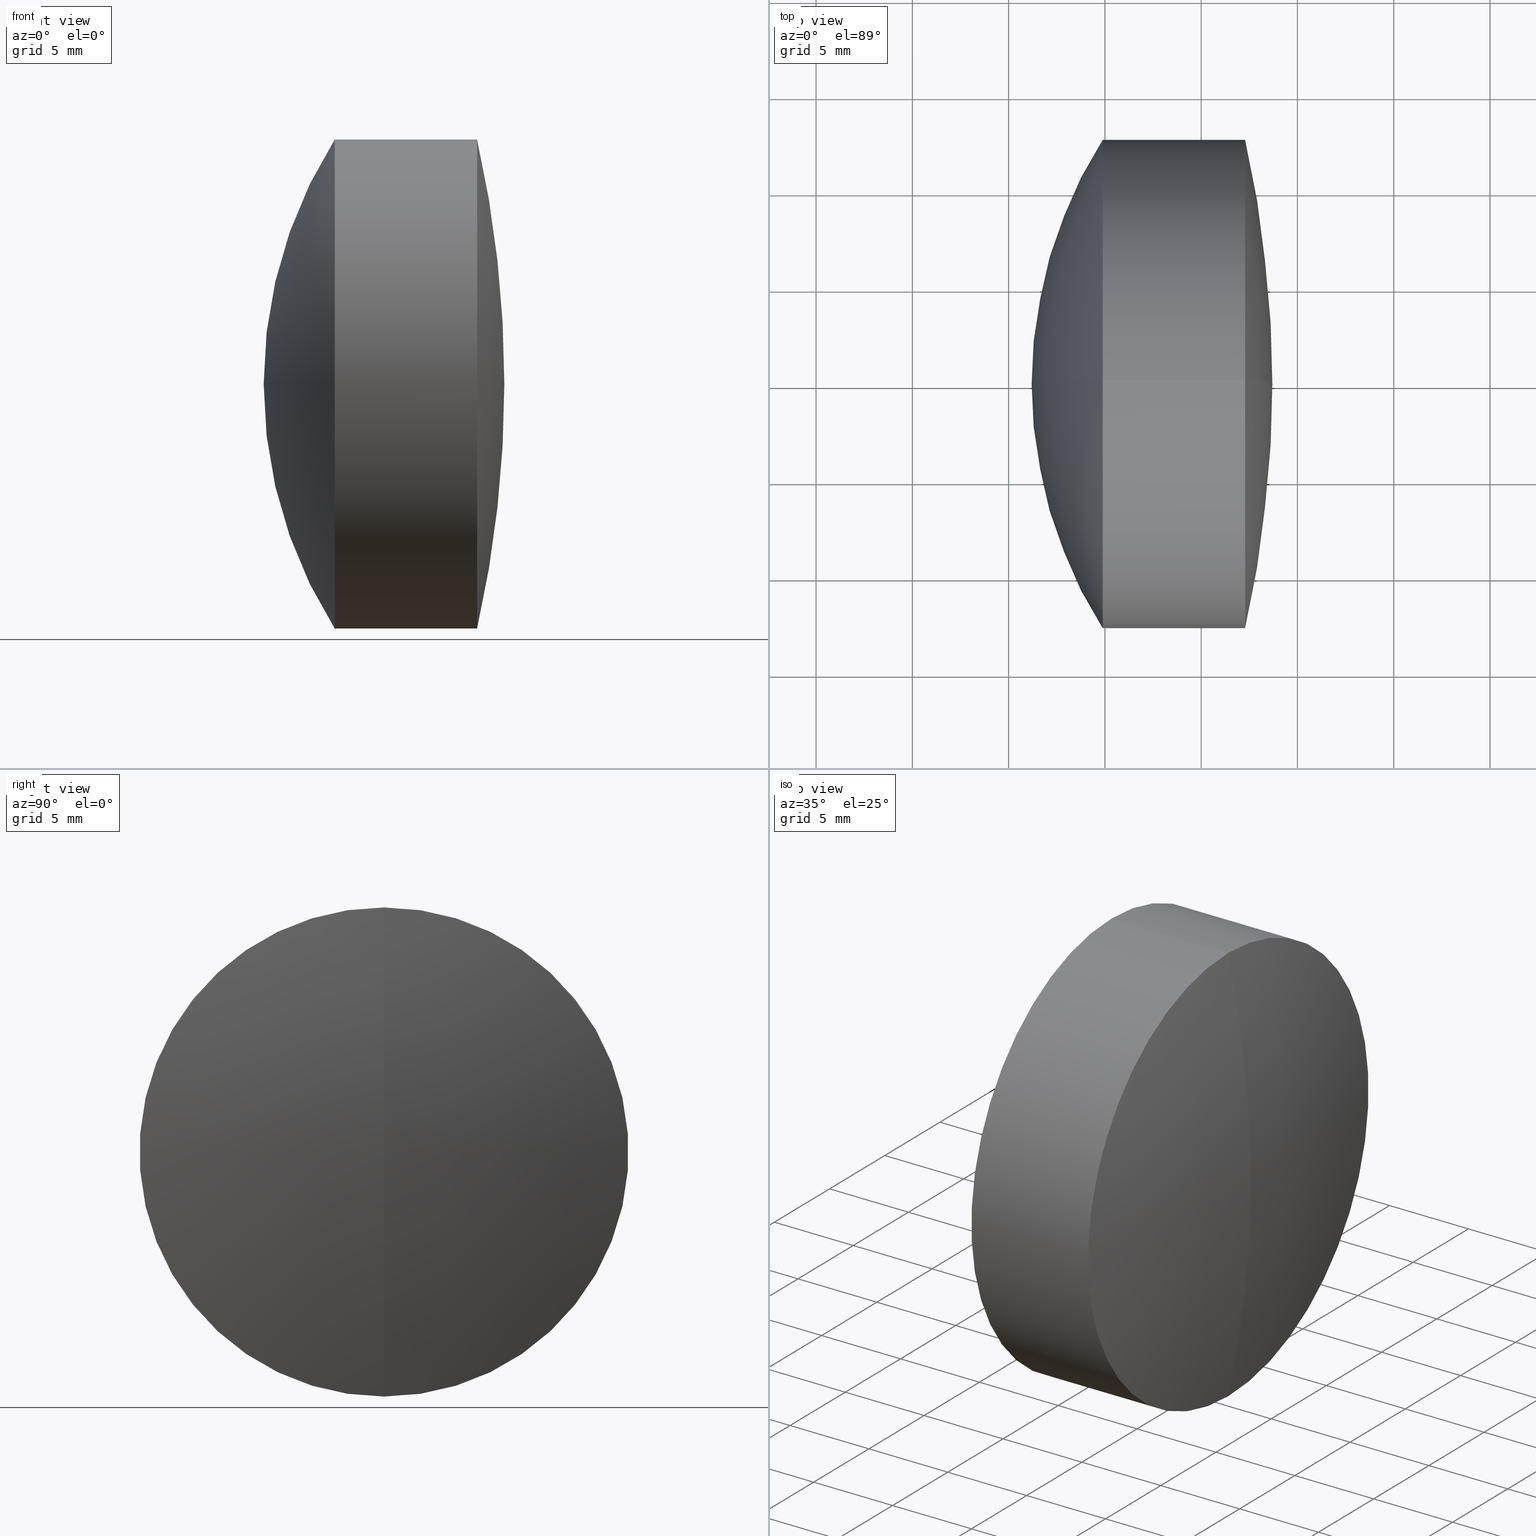
[diagram: canonical four-view strip — front | top / right | iso, engineering-drawing reading convention]
A machine part, canonical four-view strip (front | top / right | iso — engineering-drawing reading convention). The complete STEP part file that produces these views, byte-faithful:
ISO-10303-21;
HEADER;
FILE_DESCRIPTION (( 'STEP AP214' ),
    '1' );
FILE_NAME ('145052.STEP',
    '2019-05-13T06:49:58',
    ( 'user' ),
    ( '΢���й�' ),
    'SwSTEP 2.0',
    'SolidWorks 2016',
    '' );
FILE_SCHEMA (( 'AUTOMOTIVE_DESIGN' ));
ENDSEC;

DATA;
#1 = ADVANCED_FACE ( 'NONE', ( #256 ), #59, .T. ) ;
#2 = VERTEX_POINT ( 'NONE', #145 ) ;
#3 = PRESENTATION_STYLE_ASSIGNMENT (( #137 ) ) ;
#4 = DIRECTION ( 'NONE',  ( -1.000000000000000000, -0.0000000000000000000, -0.0000000000000000000 ) ) ;
#5 = SPHERICAL_SURFACE ( 'NONE', #147, 23.69999999999999200 ) ;
#6 = CARTESIAN_POINT ( 'NONE',  ( 244.8958458084194100, 0.0000000000000000000, -2.857671190244262000E-015 ) ) ;
#7 = AXIS2_PLACEMENT_3D ( 'NONE', #159, #4, #297 ) ;
#8 = ORIENTED_EDGE ( 'NONE', *, *, #273, .F. ) ;
#9 = DIRECTION ( 'NONE',  ( 0.0000000000000000000, -1.000000000000000000, 0.0000000000000000000 ) ) ;
#10 = VERTEX_POINT ( 'NONE', #301 ) ;
#11 = AXIS2_PLACEMENT_3D ( 'NONE', #69, #126, #292 ) ;
#12 = SPHERICAL_SURFACE ( 'NONE', #170, 23.69999999999999200 ) ;
#13 = PRESENTATION_LAYER_ASSIGNMENT (  '', '', ( #65 ) ) ;
#14 = DIRECTION ( 'NONE',  ( 0.0000000000000000000, -1.224646799147353000E-016, 1.000000000000000000 ) ) ;
#15 = VERTEX_POINT ( 'NONE', #150 ) ;
#16 = EDGE_LOOP ( 'NONE', ( #315, #142, #239 ) ) ;
#17 = CYLINDRICAL_SURFACE ( 'NONE', #46, 12.70000000000000300 ) ;
#18 = UNCERTAINTY_MEASURE_WITH_UNIT (LENGTH_MEASURE( 1.000000000000000100E-005 ), #184, 'distance_accuracy_value', 'NONE');
#19 = DIRECTION ( 'NONE',  ( -1.000000000000000000, -0.0000000000000000000, -0.0000000000000000000 ) ) ;
#20 = ORIENTED_EDGE ( 'NONE', *, *, #311, .F. ) ;
#21 = FACE_OUTER_BOUND ( 'NONE', #168, .T. ) ;
#22 = UNCERTAINTY_MEASURE_WITH_UNIT (LENGTH_MEASURE( 1.000000000000000100E-005 ), #210, 'distance_accuracy_value', 'NONE');
#23 = CARTESIAN_POINT ( 'NONE',  ( 232.2808349263005700, 0.0000000000000000000, 0.0000000000000000000 ) ) ;
#24 = DIRECTION ( 'NONE',  ( 0.0000000000000000000, 1.000000000000000000, 0.0000000000000000000 ) ) ;
#25 = VERTEX_POINT ( 'NONE', #101 ) ;
#26 = ADVANCED_FACE ( 'NONE', ( #128 ), #342, .T. ) ;
#27 = FACE_OUTER_BOUND ( 'NONE', #98, .T. ) ;
#28 = FACE_OUTER_BOUND ( 'NONE', #343, .T. ) ;
#29 = AXIS2_PLACEMENT_3D ( 'NONE', #174, #19, #105 ) ;
#30 =( GEOMETRIC_REPRESENTATION_CONTEXT ( 3 ) GLOBAL_UNCERTAINTY_ASSIGNED_CONTEXT ( ( #18 ) ) GLOBAL_UNIT_ASSIGNED_CONTEXT ( ( #184, #155, #313 ) ) REPRESENTATION_CONTEXT ( 'NONE', 'WORKASPACE' ) );
#31 = EDGE_CURVE ( 'NONE', #10, #275, #182, .T. ) ;
#32 = DIRECTION ( 'NONE',  ( -1.000000000000000000, -0.0000000000000000000, -0.0000000000000000000 ) ) ;
#33 = SURFACE_SIDE_STYLE ('',( #200 ) ) ;
#34 = VERTEX_POINT ( 'NONE', #165 ) ;
#35 = CARTESIAN_POINT ( 'NONE',  ( 226.6753194837398000, 0.0000000000000000000, 0.0000000000000000000 ) ) ;
#36 = DIRECTION ( 'NONE',  ( 0.0000000000000000000, 0.0000000000000000000, 1.000000000000000000 ) ) ;
#37 = DIRECTION ( 'NONE',  ( 0.0000000000000000000, 0.0000000000000000000, 1.000000000000000000 ) ) ;
#38 = ORIENTED_EDGE ( 'NONE', *, *, #302, .T. ) ;
#39 = CARTESIAN_POINT ( 'NONE',  ( 232.2808349263005700, 0.0000000000000000000, 0.0000000000000000000 ) ) ;
#40 = ORIENTED_EDGE ( 'NONE', *, *, #273, .T. ) ;
#41 = SURFACE_SIDE_STYLE ('',( #110 ) ) ;
#42 = DIRECTION ( 'NONE',  ( 0.0000000000000000000, -1.224646799147353200E-016, 1.000000000000000000 ) ) ;
#43 = CARTESIAN_POINT ( 'NONE',  ( 224.8858483071701900, 1.555301434917138000E-015, -12.69999999999999800 ) ) ;
#44 = ORIENTED_EDGE ( 'NONE', *, *, #314, .T. ) ;
#45 = ADVANCED_BREP_SHAPE_REPRESENTATION ( '145052', ( #55, #305, #136 ), #185 ) ;
#46 = AXIS2_PLACEMENT_3D ( 'NONE', #222, #294, #36 ) ;
#47 = DIRECTION ( 'NONE',  ( -1.000000000000000000, -0.0000000000000000000, -0.0000000000000000000 ) ) ;
#48 = DIRECTION ( 'NONE',  ( -1.000000000000000000, -0.0000000000000000000, -0.0000000000000000000 ) ) ;
#49 =( GEOMETRIC_REPRESENTATION_CONTEXT ( 3 ) GLOBAL_UNCERTAINTY_ASSIGNED_CONTEXT ( ( #22 ) ) GLOBAL_UNIT_ASSIGNED_CONTEXT ( ( #210, #54, #345 ) ) REPRESENTATION_CONTEXT ( 'NONE', 'WORKASPACE' ) );
#50 = ORIENTED_EDGE ( 'NONE', *, *, #173, .T. ) ;
#51 = CIRCLE ( 'NONE', #7, 12.69999999999999800 ) ;
#52 = EDGE_CURVE ( 'NONE', #25, #10, #96, .T. ) ;
#53 = VECTOR ( 'NONE', #217, 1000.000000000000000 ) ;
#54 =( NAMED_UNIT ( * ) PLANE_ANGLE_UNIT ( ) SI_UNIT ( $, .RADIAN. ) );
#55 = MANIFOLD_SOLID_BREP ( '��ת1', #219 ) ;
#56 = DIRECTION ( 'NONE',  ( 0.0000000000000000000, 0.0000000000000000000, -1.000000000000000000 ) ) ;
#57 = ADVANCED_FACE ( 'NONE', ( #264 ), #17, .T. ) ;
#58 =( NAMED_UNIT ( * ) SI_UNIT ( $, .STERADIAN. ) SOLID_ANGLE_UNIT ( ) );
#59 = CYLINDRICAL_SURFACE ( 'NONE', #298, 12.69999999999999600 ) ;
#60 = ORIENTED_EDGE ( 'NONE', *, *, #180, .F. ) ;
#61 = DIRECTION ( 'NONE',  ( -0.0000000000000000000, 1.000000000000000000, 1.224646799147353200E-016 ) ) ;
#62 = APPLICATION_PROTOCOL_DEFINITION ( 'draft international standard', 'automotive_design', 1998, #117 ) ;
#63 = CIRCLE ( 'NONE', #29, 12.69999999999999800 ) ;
#64 = CARTESIAN_POINT ( 'NONE',  ( -9.702612178336682500, 0.0000000000000000000, 12.69999999999999600 ) ) ;
#65 = STYLED_ITEM ( 'NONE', ( #79 ), #305 ) ;
#66 = EDGE_CURVE ( 'NONE', #115, #15, #202, .T. ) ;
#67 = CARTESIAN_POINT ( 'NONE',  ( 231.1958458084194200, 0.0000000000000000000, -1.955184743761382200E-015 ) ) ;
#68 = UNCERTAINTY_MEASURE_WITH_UNIT (LENGTH_MEASURE( 1.000000000000000100E-005 ), #221, 'distance_accuracy_value', 'NONE');
#69 = CARTESIAN_POINT ( 'NONE',  ( -0.5519199926577972300, 0.0000000000000000000, 0.0000000000000000000 ) ) ;
#70 = AXIS2_PLACEMENT_3D ( 'NONE', #23, #47, #124 ) ;
#71 = ORIENTED_EDGE ( 'NONE', *, *, #344, .F. ) ;
#72 = MECHANICAL_DESIGN_GEOMETRIC_PRESENTATION_REPRESENTATION (  '', ( #65 ), #49 ) ;
#73 = FACE_OUTER_BOUND ( 'NONE', #244, .T. ) ;
#74 = EDGE_CURVE ( 'NONE', #146, #34, #223, .T. ) ;
#75 = ORIENTED_EDGE ( 'NONE', *, *, #52, .F. ) ;
#76 = CARTESIAN_POINT ( 'NONE',  ( 244.8958458084194100, 0.0000000000000000000, -2.857671190244262000E-015 ) ) ;
#77 = DIRECTION ( 'NONE',  ( 0.0000000000000000000, 0.0000000000000000000, 1.000000000000000000 ) ) ;
#78 = EDGE_CURVE ( 'NONE', #275, #87, #216, .T. ) ;
#79 = PRESENTATION_STYLE_ASSIGNMENT (( #332 ) ) ;
#80 = ORIENTED_EDGE ( 'NONE', *, *, #78, .F. ) ;
#81 = AXIS2_PLACEMENT_3D ( 'NONE', #338, #148, #14 ) ;
#82 = FACE_OUTER_BOUND ( 'NONE', #16, .T. ) ;
#83 = DIRECTION ( 'NONE',  ( -0.0000000000000000000, 1.000000000000000000, 1.224646799147353200E-016 ) ) ;
#84 = AXIS2_PLACEMENT_3D ( 'NONE', #240, #162, #266 ) ;
#85 = EDGE_CURVE ( 'NONE', #265, #2, #237, .T. ) ;
#86 = FILL_AREA_STYLE ('',( #243 ) ) ;
#87 = VERTEX_POINT ( 'NONE', #123 ) ;
#88 = PRODUCT_CONTEXT ( 'NONE', #117, 'mechanical' ) ;
#89 = DIRECTION ( 'NONE',  ( 0.0000000000000000000, -1.000000000000000000, 0.0000000000000000000 ) ) ;
#90 = UNCERTAINTY_MEASURE_WITH_UNIT (LENGTH_MEASURE( 1.000000000000000100E-005 ), #193, 'distance_accuracy_value', 'NONE');
#91 = CYLINDRICAL_SURFACE ( 'NONE', #118, 12.69999999999999600 ) ;
#92 = DIRECTION ( 'NONE',  ( 0.0000000000000000000, 0.0000000000000000000, 1.000000000000000000 ) ) ;
#93 = EDGE_LOOP ( 'NONE', ( #245, #40, #322, #107 ) ) ;
#94 = VECTOR ( 'NONE', #48, 1000.000000000000000 ) ;
#95 = DIRECTION ( 'NONE',  ( 0.0000000000000000000, -1.224646799147353000E-016, 1.000000000000000000 ) ) ;
#96 = LINE ( 'NONE', #64, #114 ) ;
#97 = DIRECTION ( 'NONE',  ( -1.000000000000000000, -0.0000000000000000000, -0.0000000000000000000 ) ) ;
#98 = EDGE_LOOP ( 'NONE', ( #284, #316, #50 ) ) ;
#99 = CARTESIAN_POINT ( 'NONE',  ( 211.0958458084194300, 0.0000000000000000000, -3.185954776904472300E-015 ) ) ;
#100 = ORIENTED_EDGE ( 'NONE', *, *, #173, .F. ) ;
#101 = CARTESIAN_POINT ( 'NONE',  ( 226.6753194837398000, 0.0000000000000000000, 12.69999999999999800 ) ) ;
#102 = SPHERICAL_SURFACE ( 'NONE', #140, 57.70000000000000300 ) ;
#103 = AXIS2_PLACEMENT_3D ( 'NONE', #39, #32, #230 ) ;
#104 = ORIENTED_EDGE ( 'NONE', *, *, #314, .F. ) ;
#105 = DIRECTION ( 'NONE',  ( 0.0000000000000000000, 0.0000000000000000000, 1.000000000000000000 ) ) ;
#106 = CIRCLE ( 'NONE', #121, 23.69999999999999200 ) ;
#107 = ORIENTED_EDGE ( 'NONE', *, *, #132, .F. ) ;
#108 = ADVANCED_FACE ( 'NONE', ( #82 ), #160, .F. ) ;
#109 = FILL_AREA_STYLE_COLOUR ( '', #258 ) ;
#110 = SURFACE_STYLE_FILL_AREA ( #335 ) ;
#111 = CARTESIAN_POINT ( 'NONE',  ( -0.5519199926577972300, 0.0000000000000000000, 12.70000000000000300 ) ) ;
#112 = ORIENTED_EDGE ( 'NONE', *, *, #31, .T. ) ;
#113 = PRESENTATION_LAYER_ASSIGNMENT (  '', '', ( #260 ) ) ;
#114 = VECTOR ( 'NONE', #304, 1000.000000000000000 ) ;
#115 = VERTEX_POINT ( 'NONE', #330 ) ;
#116 = CIRCLE ( 'NONE', #197, 12.70000000000000100 ) ;
#117 = APPLICATION_CONTEXT ( 'automotive_design' ) ;
#118 = AXIS2_PLACEMENT_3D ( 'NONE', #272, #171, #199 ) ;
#119 = ORIENTED_EDGE ( 'NONE', *, *, #249, .F. ) ;
#120 = SURFACE_STYLE_USAGE ( .BOTH. , #41 ) ;
#121 = AXIS2_PLACEMENT_3D ( 'NONE', #144, #176, #268 ) ;
#122 = LINE ( 'NONE', #254, #53 ) ;
#123 = CARTESIAN_POINT ( 'NONE',  ( 221.1958458084194200, 0.0000000000000000000, -1.406464733254649100E-015 ) ) ;
#124 = DIRECTION ( 'NONE',  ( 0.0000000000000000000, 0.0000000000000000000, 1.000000000000000000 ) ) ;
#125 = CIRCLE ( 'NONE', #134, 20.10000000000000900 ) ;
#126 = DIRECTION ( 'NONE',  ( -1.000000000000000000, -0.0000000000000000000, -0.0000000000000000000 ) ) ;
#127 = CARTESIAN_POINT ( 'NONE',  ( 244.8958458084194100, 0.0000000000000000000, -2.857671190244262000E-015 ) ) ;
#128 = FACE_OUTER_BOUND ( 'NONE', #312, .T. ) ;
#129 = CIRCLE ( 'NONE', #201, 20.10000000000000900 ) ;
#130 = CIRCLE ( 'NONE', #189, 57.70000000000000300 ) ;
#131 = PRODUCT_DEFINITION ( 'δ֪', '', #191, #288 ) ;
#132 = EDGE_CURVE ( 'NONE', #275, #10, #310, .T. ) ;
#133 = ADVANCED_FACE ( 'NONE', ( #21 ), #149, .T. ) ;
#134 = AXIS2_PLACEMENT_3D ( 'NONE', #181, #334, #56 ) ;
#135 = SPHERICAL_SURFACE ( 'NONE', #262, 20.10000000000000900 ) ;
#136 = AXIS2_PLACEMENT_3D ( 'NONE', #295, #212, #232 ) ;
#137 = SURFACE_STYLE_USAGE ( .BOTH. , #320 ) ;
#138 = VERTEX_POINT ( 'NONE', #67 ) ;
#139 = CARTESIAN_POINT ( 'NONE',  ( 211.0958458084194300, 0.0000000000000000000, -3.185954776904472300E-015 ) ) ;
#140 = AXIS2_PLACEMENT_3D ( 'NONE', #203, #24, #188 ) ;
#141 = DIRECTION ( 'NONE',  ( 0.0000000000000000000, 0.0000000000000000000, 1.000000000000000000 ) ) ;
#142 = ORIENTED_EDGE ( 'NONE', *, *, #66, .T. ) ;
#143 = FACE_OUTER_BOUND ( 'NONE', #233, .T. ) ;
#144 = CARTESIAN_POINT ( 'NONE',  ( 244.8958458084194100, 0.0000000000000000000, -2.857671190244262000E-015 ) ) ;
#145 = CARTESIAN_POINT ( 'NONE',  ( 226.6753194837398000, 1.555301434917138200E-015, -12.70000000000000300 ) ) ;
#146 = VERTEX_POINT ( 'NONE', #339 ) ;
#147 = AXIS2_PLACEMENT_3D ( 'NONE', #6, #347, #224 ) ;
#148 = DIRECTION ( 'NONE',  ( -0.0000000000000000000, 1.000000000000000000, 1.224646799147353200E-016 ) ) ;
#149 = SPHERICAL_SURFACE ( 'NONE', #157, 57.70000000000000300 ) ;
#150 = CARTESIAN_POINT ( 'NONE',  ( 226.6753194837398000, 0.0000000000000000000, 12.69999999999999900 ) ) ;
#151 = ORIENTED_EDGE ( 'NONE', *, *, #74, .F. ) ;
#152 = FILL_AREA_STYLE ('',( #109 ) ) ;
#153 =( GEOMETRIC_REPRESENTATION_CONTEXT ( 3 ) GLOBAL_UNCERTAINTY_ASSIGNED_CONTEXT ( ( #68 ) ) GLOBAL_UNIT_ASSIGNED_CONTEXT ( ( #221, #229, #172 ) ) REPRESENTATION_CONTEXT ( 'NONE', 'WORKASPACE' ) );
#154 = PRODUCT_RELATED_PRODUCT_CATEGORY ( 'part', '', ( #250 ) ) ;
#155 =( NAMED_UNIT ( * ) PLANE_ANGLE_UNIT ( ) SI_UNIT ( $, .RADIAN. ) );
#156 = ADVANCED_FACE ( 'NONE', ( #28 ), #12, .T. ) ;
#157 = AXIS2_PLACEMENT_3D ( 'NONE', #196, #248, #205 ) ;
#158 = CARTESIAN_POINT ( 'NONE',  ( 226.6753194837398000, 1.555301434917138400E-015, -12.69999999999999900 ) ) ;
#159 = CARTESIAN_POINT ( 'NONE',  ( 226.6753194837398000, 0.0000000000000000000, 0.0000000000000000000 ) ) ;
#160 = SPHERICAL_SURFACE ( 'NONE', #179, 20.10000000000000900 ) ;
#161 = CARTESIAN_POINT ( 'NONE',  ( 211.0958458084194300, 0.0000000000000000000, -3.185954776904472300E-015 ) ) ;
#162 = DIRECTION ( 'NONE',  ( -1.000000000000000000, -0.0000000000000000000, -0.0000000000000000000 ) ) ;
#163 = ORIENTED_EDGE ( 'NONE', *, *, #132, .T. ) ;
#164 = CARTESIAN_POINT ( 'NONE',  ( -0.5519199926577972300, 1.555301434917138800E-015, -12.70000000000000300 ) ) ;
#165 = CARTESIAN_POINT ( 'NONE',  ( 232.2808349263005700, 0.0000000000000000000, 12.70000000000000300 ) ) ;
#166 = ORIENTED_EDGE ( 'NONE', *, *, #249, .T. ) ;
#167 = CARTESIAN_POINT ( 'NONE',  ( 224.8858483071701900, 0.0000000000000000000, 0.0000000000000000000 ) ) ;
#168 = EDGE_LOOP ( 'NONE', ( #290, #337, #183 ) ) ;
#169 = CIRCLE ( 'NONE', #103, 12.70000000000000300 ) ;
#170 = AXIS2_PLACEMENT_3D ( 'NONE', #127, #225, #329 ) ;
#171 = DIRECTION ( 'NONE',  ( -1.000000000000000000, -0.0000000000000000000, -0.0000000000000000000 ) ) ;
#172 =( NAMED_UNIT ( * ) SI_UNIT ( $, .STERADIAN. ) SOLID_ANGLE_UNIT ( ) );
#173 = EDGE_CURVE ( 'NONE', #2, #15, #116, .T. ) ;
#174 = CARTESIAN_POINT ( 'NONE',  ( 226.6753194837398000, 0.0000000000000000000, 0.0000000000000000000 ) ) ;
#175 = DIRECTION ( 'NONE',  ( 0.0000000000000000000, 1.000000000000000000, 0.0000000000000000000 ) ) ;
#176 = DIRECTION ( 'NONE',  ( 0.0000000000000000000, -1.000000000000000000, 0.0000000000000000000 ) ) ;
#177 = ORIENTED_EDGE ( 'NONE', *, *, #78, .T. ) ;
#178 = DIRECTION ( 'NONE',  ( -0.0000000000000000000, 1.000000000000000000, 1.224646799147353200E-016 ) ) ;
#179 = AXIS2_PLACEMENT_3D ( 'NONE', #139, #299, #77 ) ;
#180 = EDGE_CURVE ( 'NONE', #138, #25, #125, .T. ) ;
#181 = CARTESIAN_POINT ( 'NONE',  ( 211.0958458084194300, 0.0000000000000000000, -3.185954776904472300E-015 ) ) ;
#182 = CIRCLE ( 'NONE', #278, 12.69999999999999600 ) ;
#183 = ORIENTED_EDGE ( 'NONE', *, *, #231, .F. ) ;
#184 =( LENGTH_UNIT ( ) NAMED_UNIT ( * ) SI_UNIT ( .MILLI., .METRE. ) );
#185 =( GEOMETRIC_REPRESENTATION_CONTEXT ( 3 ) GLOBAL_UNCERTAINTY_ASSIGNED_CONTEXT ( ( #90 ) ) GLOBAL_UNIT_ASSIGNED_CONTEXT ( ( #193, #263, #58 ) ) REPRESENTATION_CONTEXT ( 'NONE', 'WORKASPACE' ) );
#186 = DIRECTION ( 'NONE',  ( 0.0000000000000000000, 1.000000000000000000, 0.0000000000000000000 ) ) ;
#187 = ADVANCED_FACE ( 'NONE', ( #73 ), #91, .T. ) ;
#188 = DIRECTION ( 'NONE',  ( 0.0000000000000000000, 0.0000000000000000000, 1.000000000000000000 ) ) ;
#189 = AXIS2_PLACEMENT_3D ( 'NONE', #246, #83, #42 ) ;
#190 = SURFACE_STYLE_FILL_AREA ( #152 ) ;
#191 = PRODUCT_DEFINITION_FORMATION_WITH_SPECIFIED_SOURCE ( '�κ�', '', #250, .NOT_KNOWN. ) ;
#192 = CARTESIAN_POINT ( 'NONE',  ( 211.0958458084194300, 0.0000000000000000000, -3.185954776904472300E-015 ) ) ;
#193 =( LENGTH_UNIT ( ) NAMED_UNIT ( * ) SI_UNIT ( .MILLI., .METRE. ) );
#194 = DIRECTION ( 'NONE',  ( 0.0000000000000000000, 0.0000000000000000000, -1.000000000000000000 ) ) ;
#195 = ORIENTED_EDGE ( 'NONE', *, *, #321, .F. ) ;
#196 = CARTESIAN_POINT ( 'NONE',  ( 175.9958458084194300, 0.0000000000000000000, 0.0000000000000000000 ) ) ;
#197 = AXIS2_PLACEMENT_3D ( 'NONE', #35, #198, #276 ) ;
#198 = DIRECTION ( 'NONE',  ( -1.000000000000000000, -0.0000000000000000000, -0.0000000000000000000 ) ) ;
#199 = DIRECTION ( 'NONE',  ( 0.0000000000000000000, 0.0000000000000000000, 1.000000000000000000 ) ) ;
#200 = SURFACE_STYLE_FILL_AREA ( #86 ) ;
#201 = AXIS2_PLACEMENT_3D ( 'NONE', #161, #61, #269 ) ;
#202 = CIRCLE ( 'NONE', #340, 20.10000000000000900 ) ;
#203 = CARTESIAN_POINT ( 'NONE',  ( 175.9958458084194300, 0.0000000000000000000, 0.0000000000000000000 ) ) ;
#204 = DIRECTION ( 'NONE',  ( 0.0000000000000000000, 1.000000000000000000, 0.0000000000000000000 ) ) ;
#205 = DIRECTION ( 'NONE',  ( 0.0000000000000000000, 0.0000000000000000000, 1.000000000000000000 ) ) ;
#206 = CARTESIAN_POINT ( 'NONE',  ( 232.2808349263005700, 1.555301434917138800E-015, -12.70000000000000300 ) ) ;
#207 = EDGE_LOOP ( 'NONE', ( #80, #163, #280 ) ) ;
#208 = AXIS2_PLACEMENT_3D ( 'NONE', #325, #89, #341 ) ;
#209 = CIRCLE ( 'NONE', #81, 20.10000000000000900 ) ;
#210 =( LENGTH_UNIT ( ) NAMED_UNIT ( * ) SI_UNIT ( .MILLI., .METRE. ) );
#211 = ORIENTED_EDGE ( 'NONE', *, *, #31, .F. ) ;
#212 = DIRECTION ( 'NONE',  ( 0.0000000000000000000, 0.0000000000000000000, 1.000000000000000000 ) ) ;
#213 = MECHANICAL_DESIGN_GEOMETRIC_PRESENTATION_REPRESENTATION (  '', ( #283 ), #153 ) ;
#214 = ADVANCED_FACE ( 'NONE', ( #267 ), #102, .T. ) ;
#215 = VECTOR ( 'NONE', #228, 1000.000000000000000 ) ;
#216 = CIRCLE ( 'NONE', #247, 23.69999999999999200 ) ;
#217 = DIRECTION ( 'NONE',  ( -1.000000000000000000, -0.0000000000000000000, -0.0000000000000000000 ) ) ;
#218 = CARTESIAN_POINT ( 'NONE',  ( -9.702612178336682500, 0.0000000000000000000, 0.0000000000000000000 ) ) ;
#219 = CLOSED_SHELL ( 'NONE', ( #26, #187, #156, #289, #1, #261 ) ) ;
#220 = SPHERICAL_SURFACE ( 'NONE', #279, 20.10000000000000900 ) ;
#221 =( LENGTH_UNIT ( ) NAMED_UNIT ( * ) SI_UNIT ( .MILLI., .METRE. ) );
#222 = CARTESIAN_POINT ( 'NONE',  ( -0.5519199926577972300, 0.0000000000000000000, 0.0000000000000000000 ) ) ;
#223 = CIRCLE ( 'NONE', #208, 57.70000000000000300 ) ;
#224 = DIRECTION ( 'NONE',  ( 0.0000000000000000000, 0.0000000000000000000, 1.000000000000000000 ) ) ;
#225 = DIRECTION ( 'NONE',  ( 0.0000000000000000000, 1.000000000000000000, 0.0000000000000000000 ) ) ;
#226 = ORIENTED_EDGE ( 'NONE', *, *, #286, .T. ) ;
#227 = PRESENTATION_LAYER_ASSIGNMENT (  '', '', ( #283 ) ) ;
#228 = DIRECTION ( 'NONE',  ( -1.000000000000000000, -0.0000000000000000000, -0.0000000000000000000 ) ) ;
#229 =( NAMED_UNIT ( * ) PLANE_ANGLE_UNIT ( ) SI_UNIT ( $, .RADIAN. ) );
#230 = DIRECTION ( 'NONE',  ( 0.0000000000000000000, 0.0000000000000000000, 1.000000000000000000 ) ) ;
#231 = EDGE_CURVE ( 'NONE', #265, #34, #169, .T. ) ;
#232 = DIRECTION ( 'NONE',  ( 1.000000000000000000, 0.0000000000000000000, 0.0000000000000000000 ) ) ;
#233 = EDGE_LOOP ( 'NONE', ( #166, #287, #195, #104 ) ) ;
#234 = LINE ( 'NONE', #111, #215 ) ;
#235 = EDGE_LOOP ( 'NONE', ( #20, #296, #8 ) ) ;
#236 = ADVANCED_FACE ( 'NONE', ( #143 ), #285, .T. ) ;
#237 = LINE ( 'NONE', #164, #94 ) ;
#238 = AXIS2_PLACEMENT_3D ( 'NONE', #327, #204, #37 ) ;
#239 = ORIENTED_EDGE ( 'NONE', *, *, #321, .T. ) ;
#240 = CARTESIAN_POINT ( 'NONE',  ( 226.6753194837398000, 0.0000000000000000000, 0.0000000000000000000 ) ) ;
#241 = EDGE_CURVE ( 'NONE', #115, #2, #209, .T. ) ;
#242 = DIRECTION ( 'NONE',  ( -1.000000000000000000, -0.0000000000000000000, -0.0000000000000000000 ) ) ;
#243 = FILL_AREA_STYLE_COLOUR ( '', #331 ) ;
#244 = EDGE_LOOP ( 'NONE', ( #309, #38, #211, #75 ) ) ;
#245 = ORIENTED_EDGE ( 'NONE', *, *, #302, .F. ) ;
#246 = CARTESIAN_POINT ( 'NONE',  ( 175.9958458084194300, 0.0000000000000000000, 0.0000000000000000000 ) ) ;
#247 = AXIS2_PLACEMENT_3D ( 'NONE', #76, #178, #95 ) ;
#248 = DIRECTION ( 'NONE',  ( 0.0000000000000000000, 1.000000000000000000, 0.0000000000000000000 ) ) ;
#249 = EDGE_CURVE ( 'NONE', #34, #265, #324, .T. ) ;
#250 = PRODUCT ( '145052', '145052', '', ( #88 ) ) ;
#251 = CLOSED_SHELL ( 'NONE', ( #214, #236, #318, #108, #57, #133 ) ) ;
#252 = CIRCLE ( 'NONE', #84, 12.70000000000000100 ) ;
#253 = FILL_AREA_STYLE_COLOUR ( '', #328 ) ;
#254 = CARTESIAN_POINT ( 'NONE',  ( -9.702612178336682500, 1.555301434917138000E-015, -12.69999999999999600 ) ) ;
#255 = PRESENTATION_STYLE_ASSIGNMENT (( #120 ) ) ;
#256 = FACE_OUTER_BOUND ( 'NONE', #93, .T. ) ;
#257 = ORIENTED_EDGE ( 'NONE', *, *, #308, .F. ) ;
#258 = COLOUR_RGB ( '',1.000000000000000000, 1.000000000000000000, 1.000000000000000000 ) ;
#259 = FACE_OUTER_BOUND ( 'NONE', #235, .T. ) ;
#260 = STYLED_ITEM ( 'NONE', ( #3 ), #45 ) ;
#261 = ADVANCED_FACE ( 'NONE', ( #259 ), #135, .T. ) ;
#262 = AXIS2_PLACEMENT_3D ( 'NONE', #306, #186, #281 ) ;
#263 =( NAMED_UNIT ( * ) PLANE_ANGLE_UNIT ( ) SI_UNIT ( $, .RADIAN. ) );
#264 = FACE_OUTER_BOUND ( 'NONE', #293, .T. ) ;
#265 = VERTEX_POINT ( 'NONE', #206 ) ;
#266 = DIRECTION ( 'NONE',  ( 0.0000000000000000000, 0.0000000000000000000, 1.000000000000000000 ) ) ;
#267 = FACE_OUTER_BOUND ( 'NONE', #271, .T. ) ;
#268 = DIRECTION ( 'NONE',  ( 0.0000000000000000000, 0.0000000000000000000, -1.000000000000000000 ) ) ;
#269 = DIRECTION ( 'NONE',  ( 0.0000000000000000000, -1.224646799147353000E-016, 1.000000000000000000 ) ) ;
#270 = ORIENTED_EDGE ( 'NONE', *, *, #231, .T. ) ;
#271 = EDGE_LOOP ( 'NONE', ( #151, #226, #119 ) ) ;
#272 = CARTESIAN_POINT ( 'NONE',  ( -9.702612178336682500, 0.0000000000000000000, 0.0000000000000000000 ) ) ;
#273 = EDGE_CURVE ( 'NONE', #346, #25, #63, .T. ) ;
#274 = DIRECTION ( 'NONE',  ( 0.0000000000000000000, 0.0000000000000000000, 1.000000000000000000 ) ) ;
#275 = VERTEX_POINT ( 'NONE', #43 ) ;
#276 = DIRECTION ( 'NONE',  ( 0.0000000000000000000, 0.0000000000000000000, 1.000000000000000000 ) ) ;
#277 = FACE_OUTER_BOUND ( 'NONE', #207, .T. ) ;
#278 = AXIS2_PLACEMENT_3D ( 'NONE', #167, #282, #92 ) ;
#279 = AXIS2_PLACEMENT_3D ( 'NONE', #192, #175, #323 ) ;
#280 = ORIENTED_EDGE ( 'NONE', *, *, #308, .T. ) ;
#281 = DIRECTION ( 'NONE',  ( 0.0000000000000000000, 0.0000000000000000000, 1.000000000000000000 ) ) ;
#282 = DIRECTION ( 'NONE',  ( -1.000000000000000000, -0.0000000000000000000, -0.0000000000000000000 ) ) ;
#283 = STYLED_ITEM ( 'NONE', ( #255 ), #55 ) ;
#284 = ORIENTED_EDGE ( 'NONE', *, *, #66, .F. ) ;
#285 = CYLINDRICAL_SURFACE ( 'NONE', #11, 12.70000000000000300 ) ;
#286 = EDGE_CURVE ( 'NONE', #146, #265, #130, .T. ) ;
#287 = ORIENTED_EDGE ( 'NONE', *, *, #85, .T. ) ;
#288 = PRODUCT_DEFINITION_CONTEXT ( 'detailed design', #336, 'design' ) ;
#289 = ADVANCED_FACE ( 'NONE', ( #277 ), #5, .T. ) ;
#290 = ORIENTED_EDGE ( 'NONE', *, *, #286, .F. ) ;
#291 = SHAPE_DEFINITION_REPRESENTATION ( #317, #45 ) ;
#292 = DIRECTION ( 'NONE',  ( 0.0000000000000000000, 0.0000000000000000000, 1.000000000000000000 ) ) ;
#293 = EDGE_LOOP ( 'NONE', ( #307, #270, #44, #100 ) ) ;
#294 = DIRECTION ( 'NONE',  ( -1.000000000000000000, -0.0000000000000000000, -0.0000000000000000000 ) ) ;
#295 = CARTESIAN_POINT ( 'NONE',  ( 0.0000000000000000000, 0.0000000000000000000, 0.0000000000000000000 ) ) ;
#296 = ORIENTED_EDGE ( 'NONE', *, *, #180, .T. ) ;
#297 = DIRECTION ( 'NONE',  ( 0.0000000000000000000, 0.0000000000000000000, 1.000000000000000000 ) ) ;
#298 = AXIS2_PLACEMENT_3D ( 'NONE', #218, #97, #141 ) ;
#299 = DIRECTION ( 'NONE',  ( 0.0000000000000000000, 1.000000000000000000, 0.0000000000000000000 ) ) ;
#300 = ORIENTED_EDGE ( 'NONE', *, *, #311, .T. ) ;
#301 = CARTESIAN_POINT ( 'NONE',  ( 224.8858483071701900, 0.0000000000000000000, 12.69999999999999400 ) ) ;
#302 = EDGE_CURVE ( 'NONE', #346, #275, #122, .T. ) ;
#303 = CARTESIAN_POINT ( 'NONE',  ( 224.8858483071701900, 0.0000000000000000000, 0.0000000000000000000 ) ) ;
#304 = DIRECTION ( 'NONE',  ( -1.000000000000000000, -0.0000000000000000000, -0.0000000000000000000 ) ) ;
#305 = MANIFOLD_SOLID_BREP ( '��ת3', #251 ) ;
#306 = CARTESIAN_POINT ( 'NONE',  ( 211.0958458084194300, 0.0000000000000000000, -3.185954776904472300E-015 ) ) ;
#307 = ORIENTED_EDGE ( 'NONE', *, *, #85, .F. ) ;
#308 = EDGE_CURVE ( 'NONE', #10, #87, #106, .T. ) ;
#309 = ORIENTED_EDGE ( 'NONE', *, *, #344, .T. ) ;
#310 = CIRCLE ( 'NONE', #319, 12.69999999999999600 ) ;
#311 = EDGE_CURVE ( 'NONE', #138, #346, #129, .T. ) ;
#312 = EDGE_LOOP ( 'NONE', ( #60, #300, #71 ) ) ;
#313 =( NAMED_UNIT ( * ) SI_UNIT ( $, .STERADIAN. ) SOLID_ANGLE_UNIT ( ) );
#314 = EDGE_CURVE ( 'NONE', #34, #15, #234, .T. ) ;
#315 = ORIENTED_EDGE ( 'NONE', *, *, #241, .F. ) ;
#316 = ORIENTED_EDGE ( 'NONE', *, *, #241, .T. ) ;
#317 = PRODUCT_DEFINITION_SHAPE ( 'NONE', 'NONE',  #131 ) ;
#318 = ADVANCED_FACE ( 'NONE', ( #27 ), #220, .F. ) ;
#319 = AXIS2_PLACEMENT_3D ( 'NONE', #303, #242, #274 ) ;
#320 = SURFACE_SIDE_STYLE ('',( #190 ) ) ;
#321 = EDGE_CURVE ( 'NONE', #15, #2, #252, .T. ) ;
#322 = ORIENTED_EDGE ( 'NONE', *, *, #52, .T. ) ;
#323 = DIRECTION ( 'NONE',  ( 0.0000000000000000000, 0.0000000000000000000, 1.000000000000000000 ) ) ;
#324 = CIRCLE ( 'NONE', #70, 12.70000000000000300 ) ;
#325 = CARTESIAN_POINT ( 'NONE',  ( 175.9958458084194300, 0.0000000000000000000, 0.0000000000000000000 ) ) ;
#326 = APPLICATION_PROTOCOL_DEFINITION ( 'draft international standard', 'automotive_design', 1998, #336 ) ;
#327 = CARTESIAN_POINT ( 'NONE',  ( 211.0958458084194300, 0.0000000000000000000, -3.185954776904472300E-015 ) ) ;
#328 = COLOUR_RGB ( '',1.000000000000000000, 1.000000000000000000, 1.000000000000000000 ) ;
#329 = DIRECTION ( 'NONE',  ( 0.0000000000000000000, 0.0000000000000000000, 1.000000000000000000 ) ) ;
#330 = CARTESIAN_POINT ( 'NONE',  ( 231.1958458084194200, 0.0000000000000000000, -1.955184743761382200E-015 ) ) ;
#331 = COLOUR_RGB ( '',1.000000000000000000, 1.000000000000000000, 1.000000000000000000 ) ;
#332 = SURFACE_STYLE_USAGE ( .BOTH. , #33 ) ;
#333 = MECHANICAL_DESIGN_GEOMETRIC_PRESENTATION_REPRESENTATION (  '', ( #260 ), #30 ) ;
#334 = DIRECTION ( 'NONE',  ( 0.0000000000000000000, -1.000000000000000000, 0.0000000000000000000 ) ) ;
#335 = FILL_AREA_STYLE ('',( #253 ) ) ;
#336 = APPLICATION_CONTEXT ( 'automotive_design' ) ;
#337 = ORIENTED_EDGE ( 'NONE', *, *, #74, .T. ) ;
#338 = CARTESIAN_POINT ( 'NONE',  ( 211.0958458084194300, 0.0000000000000000000, -3.185954776904472300E-015 ) ) ;
#339 = CARTESIAN_POINT ( 'NONE',  ( 233.6958458084194200, 0.0000000000000000000, 3.533106015540114000E-015 ) ) ;
#340 = AXIS2_PLACEMENT_3D ( 'NONE', #99, #9, #194 ) ;
#341 = DIRECTION ( 'NONE',  ( 0.0000000000000000000, 0.0000000000000000000, -1.000000000000000000 ) ) ;
#342 = SPHERICAL_SURFACE ( 'NONE', #238, 20.10000000000000900 ) ;
#343 = EDGE_LOOP ( 'NONE', ( #112, #177, #257 ) ) ;
#344 = EDGE_CURVE ( 'NONE', #25, #346, #51, .T. ) ;
#345 =( NAMED_UNIT ( * ) SI_UNIT ( $, .STERADIAN. ) SOLID_ANGLE_UNIT ( ) );
#346 = VERTEX_POINT ( 'NONE', #158 ) ;
#347 = DIRECTION ( 'NONE',  ( 0.0000000000000000000, 1.000000000000000000, 0.0000000000000000000 ) ) ;
ENDSEC;
END-ISO-10303-21;
